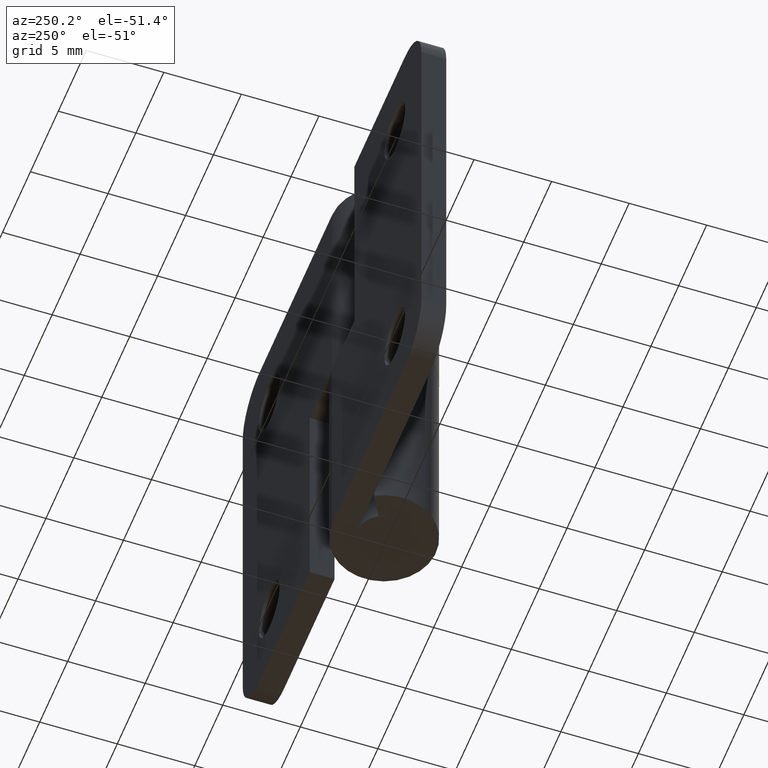
[diagram: clean part render]
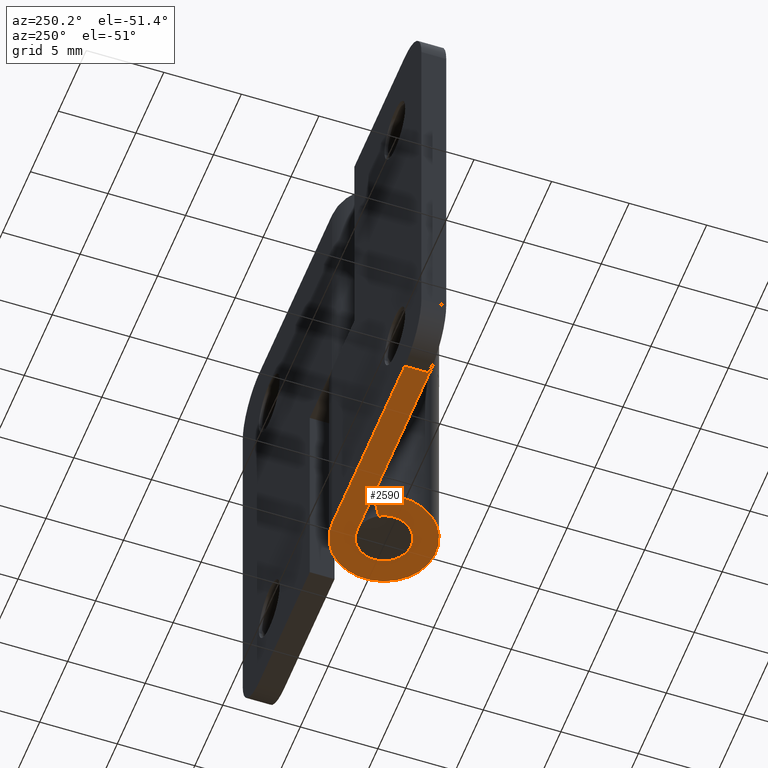
[diagram: same view with one face highlighted and labeled with its STEP entity id]
A machine part, auxiliary view. The second image highlights one B-rep face of the part: STEP entity #2590.
In plain terms, the highlighted face is a freeform B-spline surface patch.
Its self-contained STEP definition (entity closure, byte-faithful):
#2476=CARTESIAN_POINT('',(-13.0,1.750000000000030,0.0));
#2477=VERTEX_POINT('',#2476);
#2498=CARTESIAN_POINT('',(-13.0,3.349998000000000,0.0));
#2499=VERTEX_POINT('',#2498);
#2513=CARTESIAN_POINT('',(-13.0,3.349998000000000,0.0));
#2514=CARTESIAN_POINT('',(-13.0,1.750000000000030,0.0));
#2515=QUASI_UNIFORM_CURVE('',1,(#2513,#2514),.UNSPECIFIED.,.F.,.U.);
#2516=EDGE_CURVE('',#2499,#2477,#2515,.T.);
#2521=CARTESIAN_POINT('',(-13.816682190386951,-3.684625229309560,0.0));
#2522=CARTESIAN_POINT('',(4.166677064892029,-3.684625229309560,0.0));
#2523=CARTESIAN_POINT('',(-13.816682190386951,3.684661180152854,0.0));
#2524=CARTESIAN_POINT('',(4.166677064892029,3.684661180152854,0.0));
#2525=B_SPLINE_SURFACE_WITH_KNOTS('',1,1,((#2521,#2523),(#2522,#2524)),.UNSPECIFIED.,.F.,.F.,.U.,(2,2),(2,2),(0.0,17.983359255278970),(0.0,7.369286409462413),.UNSPECIFIED.);
#2526=CARTESIAN_POINT('',(0.0,1.750000000000000,0.0));
#2527=VERTEX_POINT('',#2526);
#2528=CARTESIAN_POINT('',(-13.0,1.750000000000030,0.0));
#2529=CARTESIAN_POINT('',(0.0,1.750000000000000,0.0));
#2530=QUASI_UNIFORM_CURVE('',1,(#2528,#2529),.UNSPECIFIED.,.F.,.U.);
#2531=EDGE_CURVE('',#2477,#2527,#2530,.T.);
#2532=ORIENTED_EDGE('',*,*,#2531,.F.);
#2533=ORIENTED_EDGE('',*,*,#2516,.F.);
#2534=CARTESIAN_POINT('',(-0.003660600497906,3.349998000000000,0.0));
#2535=VERTEX_POINT('',#2534);
#2536=CARTESIAN_POINT('',(-0.003660600497906,3.349998000000000,0.0));
#2537=CARTESIAN_POINT('',(-13.0,3.349998000000000,0.0));
#2538=QUASI_UNIFORM_CURVE('',1,(#2536,#2537),.UNSPECIFIED.,.F.,.U.);
#2539=EDGE_CURVE('',#2535,#2499,#2538,.T.);
#2540=ORIENTED_EDGE('',*,*,#2539,.F.);
#2541=CARTESIAN_POINT('',(-2.886607004772210,1.700000000000000,0.0));
#2542=VERTEX_POINT('',#2541);
#2543=CARTESIAN_POINT('',(-0.003660600497908,3.349997999999999,0.0));
#2544=CARTESIAN_POINT('',(2.573363773134647,3.352813958906613,0.0));
#2545=CARTESIAN_POINT('',(3.237010595501925,0.862706441733380,0.0));
#2546=CARTESIAN_POINT('',(3.900657417869203,-1.627401075439853,0.0));
#2547=CARTESIAN_POINT('',(1.664041783585816,-2.907484297890624,0.0));
#2548=CARTESIAN_POINT('',(-0.572573850697571,-4.187567520341395,0.0));
#2549=CARTESIAN_POINT('',(-2.383462674102702,-2.354061528753910,0.0));
#2550=CARTESIAN_POINT('',(-4.194351497507832,-0.520555537166425,0.0));
#2551=CARTESIAN_POINT('',(-2.886607004772211,1.700000000000002,0.0));
#2559=(BOUNDED_CURVE()B_SPLINE_CURVE(2,(#2543,#2544,#2545,#2546,#2547,#2548,#2549,#2550,#2551),.UNSPECIFIED.,.F.,.U.)B_SPLINE_CURVE_WITH_KNOTS((3,2,2,2,3),(0.0,0.250000000000000,0.500000000000000,0.750000000000000,1.0),.UNSPECIFIED.)CURVE()GEOMETRIC_REPRESENTATION_ITEM()RATIONAL_B_SPLINE_CURVE((1.0,0.792612230537205,1.0,0.792612230537205,1.0,0.792612230537205,1.0,0.792612230537205,1.0))REPRESENTATION_ITEM(''));
#2560=EDGE_CURVE('',#2535,#2542,#2559,.T.);
#2561=ORIENTED_EDGE('',*,*,#2560,.T.);
#2562=CARTESIAN_POINT('',(-1.507929032343695,0.888059701492533,0.0));
#2563=VERTEX_POINT('',#2562);
#2564=CARTESIAN_POINT('',(-1.507929032343695,0.888059701492533,0.0));
#2565=CARTESIAN_POINT('',(-2.886607004772210,1.700000000000000,0.0));
#2566=QUASI_UNIFORM_CURVE('',1,(#2564,#2565),.UNSPECIFIED.,.F.,.U.);
#2567=EDGE_CURVE('',#2563,#2542,#2566,.T.);
#2568=ORIENTED_EDGE('',*,*,#2567,.F.);
#2569=CARTESIAN_POINT('',(0.0,1.750000000000000,0.0));
#2570=CARTESIAN_POINT('',(1.345827124005090,1.750000000000000,0.0));
#2571=CARTESIAN_POINT('',(1.691344455303239,0.449281574867021,0.0));
#2572=CARTESIAN_POINT('',(2.036861786601388,-0.851436850265960,0.0));
#2573=CARTESIAN_POINT('',(0.868445600595705,-1.519309790268583,0.0));
#2574=CARTESIAN_POINT('',(-0.299970585409979,-2.187182730271208,0.0));
#2575=CARTESIAN_POINT('',(-1.245428332878128,-1.229393455190164,0.0));
#2576=CARTESIAN_POINT('',(-2.190886080346276,-0.271604180109121,0.0));
#2577=CARTESIAN_POINT('',(-1.507929032343695,0.888059701492533,0.0));
#2585=(BOUNDED_CURVE()B_SPLINE_CURVE(2,(#2569,#2570,#2571,#2572,#2573,#2574,#2575,#2576,#2577),.UNSPECIFIED.,.F.,.U.)B_SPLINE_CURVE_WITH_KNOTS((3,2,2,2,3),(0.0,0.250000000000000,0.500000000000000,0.750000000000000,1.0),.UNSPECIFIED.)CURVE()GEOMETRIC_REPRESENTATION_ITEM()RATIONAL_B_SPLINE_CURVE((1.0,0.792695505378781,1.0,0.792695505378781,1.0,0.792695505378781,1.0,0.792695505378781,1.0))REPRESENTATION_ITEM(''));
#2586=EDGE_CURVE('',#2527,#2563,#2585,.T.);
#2587=ORIENTED_EDGE('',*,*,#2586,.F.);
#2588=EDGE_LOOP('',(#2532,#2533,#2540,#2561,#2568,#2587));
#2589=FACE_OUTER_BOUND('',#2588,.T.);
#2590=ADVANCED_FACE('',(#2589),#2525,.F.);